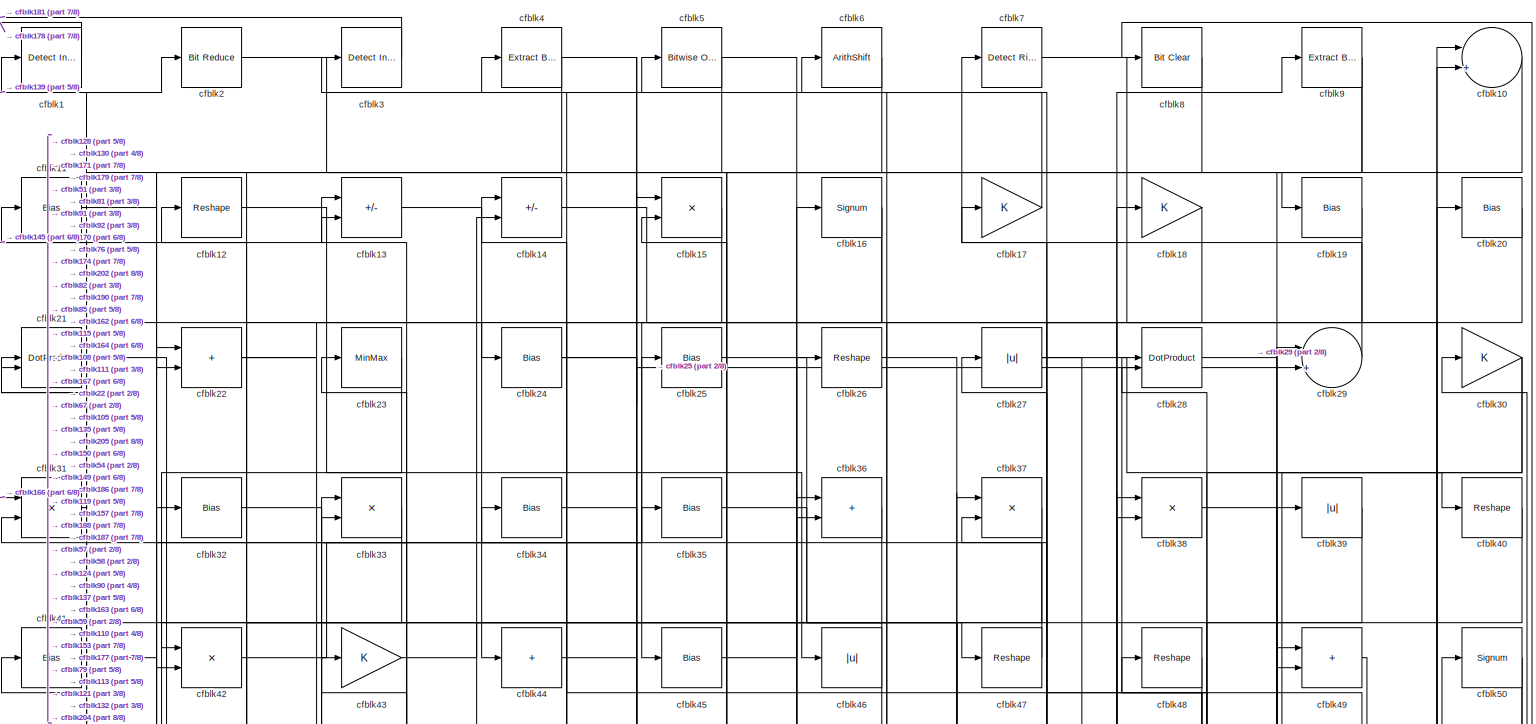
[diagram: root canvas - part 1/8, full width, top band]
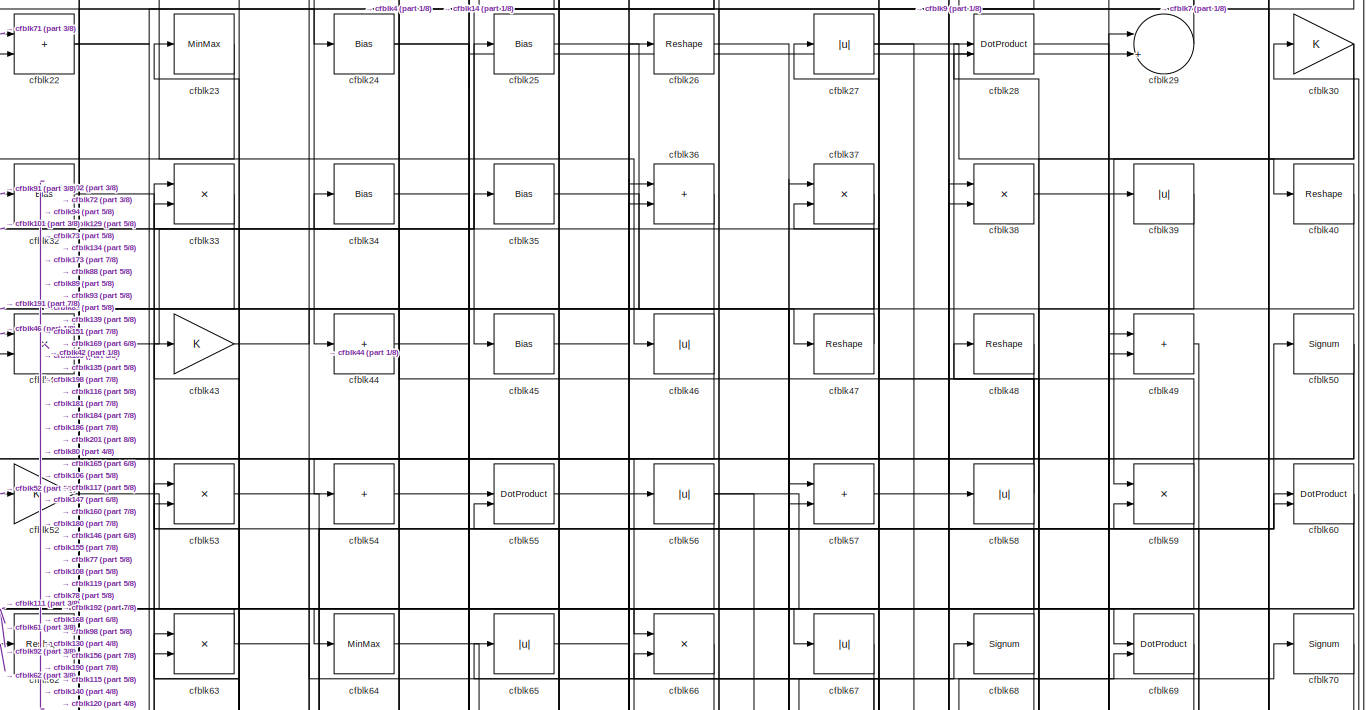
[diagram: root canvas - part 2/8, full width, top band]
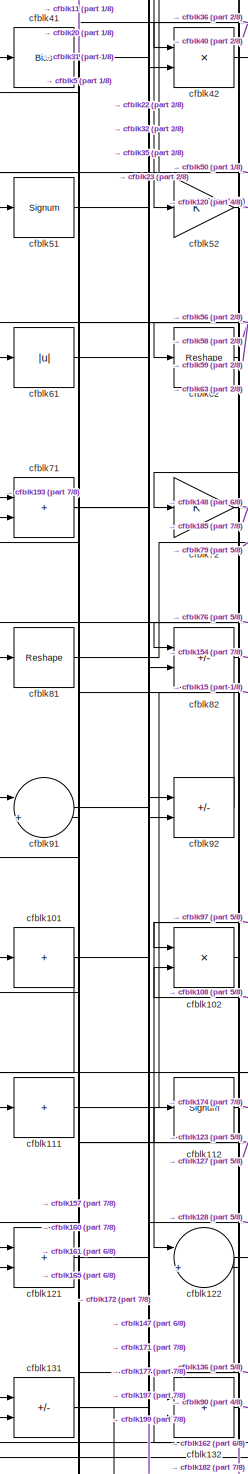
[diagram: root canvas - part 3/8, middle left region]
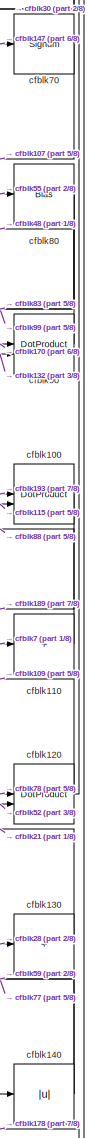
[diagram: root canvas - part 4/8, middle right region]
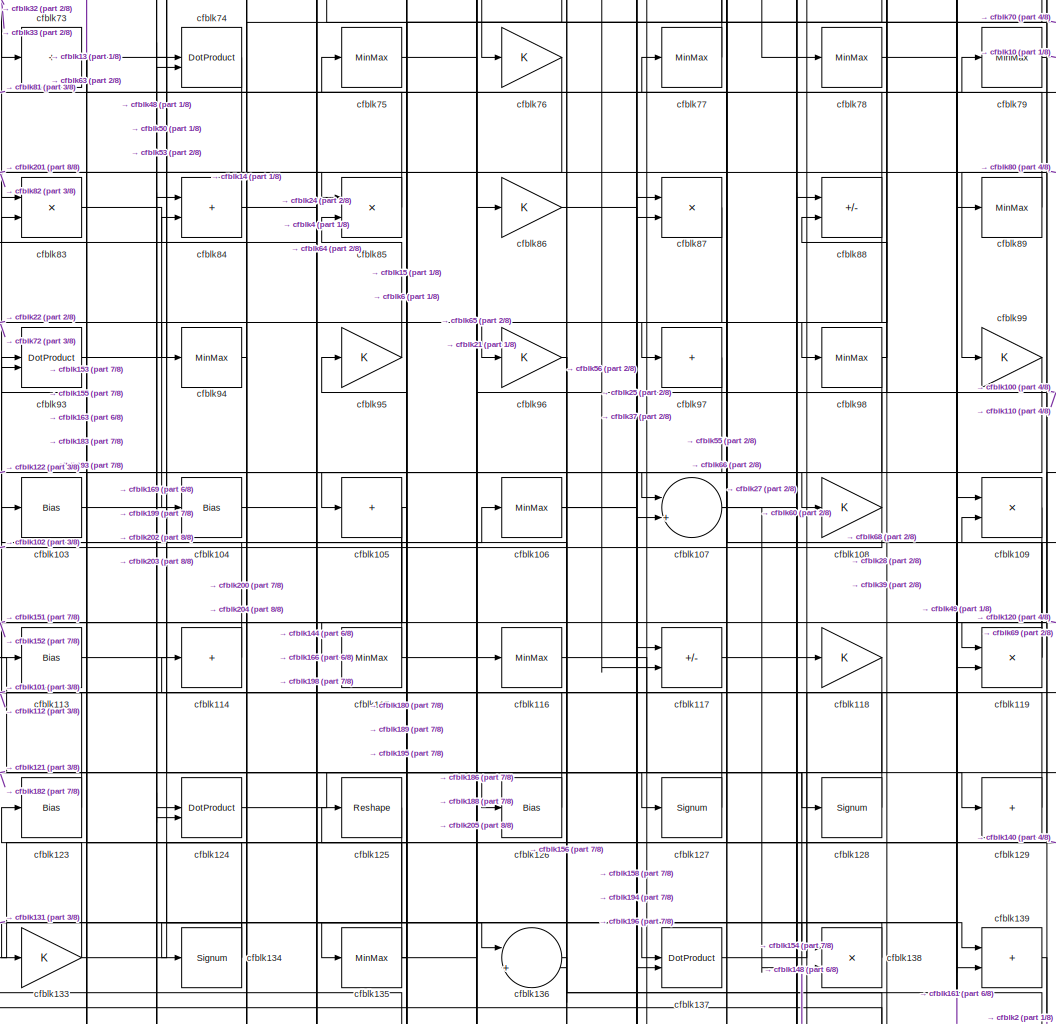
[diagram: root canvas - part 5/8, central region]
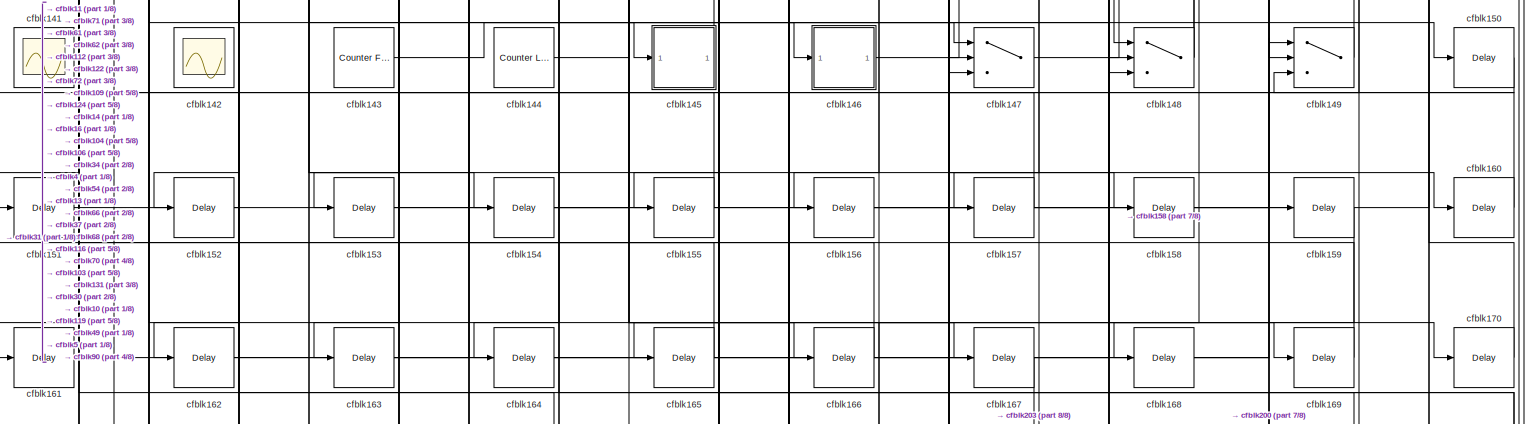
[diagram: root canvas - part 6/8, full width, bottom band]
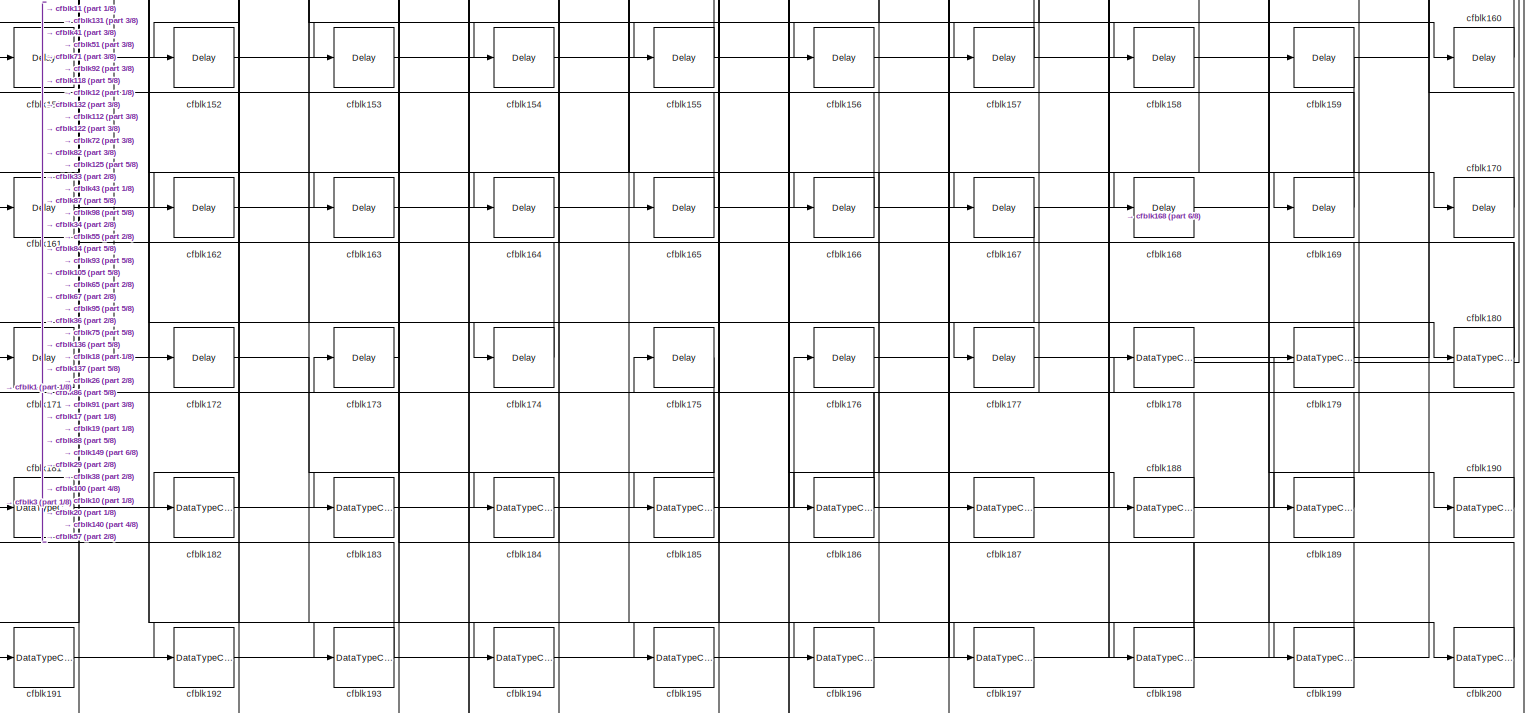
[diagram: root canvas - part 7/8, full width, bottom band]
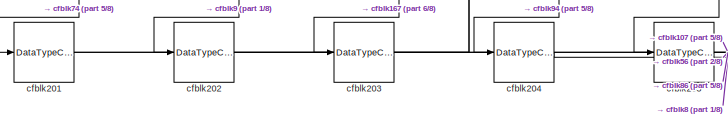
[diagram: root canvas - part 8/8, bottom left region]
MODEL slx_8ade005ada23
KIND model
CONFIG AbsTol = auto
CONFIG EnableMultiTasking = off
CONFIG FixedStep = auto
CONFIG MaxStep = auto
CONFIG MinStep = auto
CONFIG RelTol = 1e-3
CONFIG SampleTimeConstraint = Unconstrained
CONFIG SolverName = VariableStepAuto
CONFIG StartTime = 0.0
CONFIG StopTime = 10.0
BLOCK [Reference] cfblk1  REF=simulink/Logic and Bit
Operations/Detect
Increase
  LibrarySourceBlock = hdlsllib/Logic and Bit\nOperations/Detect\nIncrease
  SourceBlock = simulink/Logic and Bit\nOperations/Detect\nIncrease
  SourceType = Detect Increase
BLOCK [Sum] cfblk10
  Inputs = |++
BLOCK [DotProduct] cfblk100
  OutDataTypeStr = Inherit: Inherit via internal rule
BLOCK [Sum] cfblk101
  IconShape = rectangular
  Inputs = +
BLOCK [Product] cfblk102
  Inputs = */
  RndMeth = Zero
  SaturateOnIntegerOverflow = on
BLOCK [Bias] cfblk103
  Bias = 0.0
  SaturateOnIntegerOverflow = off
BLOCK [Bias] cfblk104
  Bias = 0.0
  SaturateOnIntegerOverflow = off
BLOCK [Sum] cfblk105
  IconShape = rectangular
  Inputs = +
BLOCK [MinMax] cfblk106
BLOCK [Sum] cfblk107
  Inputs = |++
BLOCK [Gain] cfblk108
BLOCK [Product] cfblk109
  Inputs = */
  RndMeth = Zero
  SaturateOnIntegerOverflow = on
BLOCK [Bias] cfblk11
  Bias = 0.0
  SaturateOnIntegerOverflow = off
BLOCK [Sum] cfblk110
  IconShape = rectangular
  Inputs = +
BLOCK [Sum] cfblk111
  IconShape = rectangular
  Inputs = +
BLOCK [Signum] cfblk112
BLOCK [Bias] cfblk113
  Bias = 0.0
  SaturateOnIntegerOverflow = off
BLOCK [Sum] cfblk114
  IconShape = rectangular
  Inputs = +
BLOCK [MinMax] cfblk115
BLOCK [MinMax] cfblk116
BLOCK [Sum] cfblk117
  IconShape = rectangular
  Inputs = +-
BLOCK [Gain] cfblk118
BLOCK [Product] cfblk119
  Inputs = */
  RndMeth = Zero
  SaturateOnIntegerOverflow = on
BLOCK [Reshape] cfblk12
BLOCK [DotProduct] cfblk120
  OutDataTypeStr = Inherit: Inherit via internal rule
BLOCK [Sum] cfblk121
  IconShape = rectangular
BLOCK [Sum] cfblk122
  Inputs = |++
BLOCK [Bias] cfblk123
  Bias = 0.0
  SaturateOnIntegerOverflow = off
BLOCK [DotProduct] cfblk124
  OutDataTypeStr = Inherit: Inherit via internal rule
BLOCK [Reshape] cfblk125
BLOCK [Bias] cfblk126
  Bias = 0.0
  SaturateOnIntegerOverflow = off
BLOCK [Signum] cfblk127
BLOCK [Signum] cfblk128
BLOCK [Sum] cfblk129
  IconShape = rectangular
  Inputs = +
BLOCK [Sum] cfblk13
  IconShape = rectangular
  Inputs = +-
BLOCK [Sum] cfblk130
  IconShape = rectangular
  Inputs = +
BLOCK [Sum] cfblk131
  IconShape = rectangular
  Inputs = +-
BLOCK [Sum] cfblk132
  IconShape = rectangular
BLOCK [Gain] cfblk133
BLOCK [Signum] cfblk134
BLOCK [MinMax] cfblk135
BLOCK [Sum] cfblk136
  Inputs = |++
BLOCK [DotProduct] cfblk137
  OutDataTypeStr = Inherit: Inherit via internal rule
BLOCK [Product] cfblk138
  Inputs = */
  RndMeth = Zero
  SaturateOnIntegerOverflow = on
BLOCK [Sum] cfblk139
  IconShape = rectangular
BLOCK [Sum] cfblk14
  IconShape = rectangular
  Inputs = +-
BLOCK [Abs] cfblk140
  SaturateOnIntegerOverflow = off
BLOCK [Scope] cfblk141
  Floating = on
  NumInputPorts = 1
  ScopeSpecificationString = Simulink.scopes.TimeScopeBlockCfg('CurrentConfiguration', extmgr.ConfigurationSet(extmgr.Configuration('Core','General UI',true,'FigureColor',[0.156862745098039 0.156862745098039 0.156862745098039]),extmgr.Configuration('Core','Source UI',true),extmgr.Configuration('Sources','WiredSimulink',true,'DataLoggingVariableName','ScopeData1','DataLoggingSaveFormat','StructureWithTime','DataLoggingLimitDat...<+2713ch>
BLOCK [Scope] cfblk142
  Floating = on
  NumInputPorts = 1
  ScopeSpecificationString = Simulink.scopes.TimeScopeBlockCfg('CurrentConfiguration', extmgr.ConfigurationSet(extmgr.Configuration('Core','General UI',true,'FigureColor',[0.156862745098039 0.156862745098039 0.156862745098039]),extmgr.Configuration('Core','Source UI',true),extmgr.Configuration('Sources','WiredSimulink',true,'DataLoggingVariableName','ScopeData1','DataLoggingSaveFormat','StructureWithTime','DataLoggingLimitDat...<+2713ch>
BLOCK [Reference] cfblk143  REF=hdlsllib/Sources/Counter
Free-Running
  SourceBlock = hdlsllib/Sources/Counter\nFree-Running
  SourceType = Counter Free-Running
BLOCK [Reference] cfblk144  REF=hdlsllib/Sources/Counter
Limited
  SourceBlock = hdlsllib/Sources/Counter\nLimited
  SourceType = Counter Limited
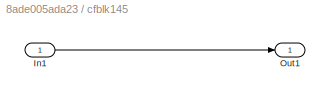
BLOCK [SubSystem] cfblk145
  LibrarySourceBlock = hdlsllib/Ports &\nSubsystems/Subsystem
BLOCK [Inport] cfblk145/In1
BLOCK [Outport] cfblk145/Out1
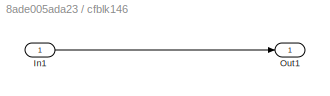
BLOCK [SubSystem] cfblk146
  LibrarySourceBlock = hdlsllib/Ports &\nSubsystems/Subsystem
BLOCK [Inport] cfblk146/In1
BLOCK [Outport] cfblk146/Out1
BLOCK [Switch] cfblk147
  InputSameDT = off
  SaturateOnIntegerOverflow = off
BLOCK [Switch] cfblk148
  InputSameDT = off
  SaturateOnIntegerOverflow = off
BLOCK [Switch] cfblk149
  InputSameDT = off
  SaturateOnIntegerOverflow = off
BLOCK [Product] cfblk15
  Inputs = */
  RndMeth = Zero
  SaturateOnIntegerOverflow = on
BLOCK [Delay] cfblk150
  InputPortMap = u0
  SampleTime = 1
BLOCK [Delay] cfblk151
  InputPortMap = u0
  SampleTime = 1
BLOCK [Delay] cfblk152
  InputPortMap = u0
  SampleTime = 1
BLOCK [Delay] cfblk153
  InputPortMap = u0
  SampleTime = 1
BLOCK [Delay] cfblk154
  InputPortMap = u0
  SampleTime = 1
BLOCK [Delay] cfblk155
  InputPortMap = u0
  SampleTime = 1
BLOCK [Delay] cfblk156
  InputPortMap = u0
  SampleTime = 1
BLOCK [Delay] cfblk157
  InputPortMap = u0
  SampleTime = 1
BLOCK [Delay] cfblk158
  InputPortMap = u0
  SampleTime = 1
BLOCK [Delay] cfblk159
  InputPortMap = u0
  SampleTime = 1
BLOCK [Signum] cfblk16
BLOCK [Delay] cfblk160
  InputPortMap = u0
  SampleTime = 1
BLOCK [Delay] cfblk161
  InputPortMap = u0
  SampleTime = 1
BLOCK [Delay] cfblk162
  InputPortMap = u0
  SampleTime = 1
BLOCK [Delay] cfblk163
  InputPortMap = u0
  SampleTime = 1
BLOCK [Delay] cfblk164
  InputPortMap = u0
  SampleTime = 1
BLOCK [Delay] cfblk165
  InputPortMap = u0
  SampleTime = 1
BLOCK [Delay] cfblk166
  InputPortMap = u0
  SampleTime = 1
BLOCK [Delay] cfblk167
  InputPortMap = u0
  SampleTime = 1
BLOCK [Delay] cfblk168
  InputPortMap = u0
  SampleTime = 1
BLOCK [Delay] cfblk169
  InputPortMap = u0
  SampleTime = 1
BLOCK [Gain] cfblk17
BLOCK [Delay] cfblk170
  InputPortMap = u0
  SampleTime = 1
BLOCK [Delay] cfblk171
  InputPortMap = u0
  SampleTime = 1
BLOCK [Delay] cfblk172
  InputPortMap = u0
  SampleTime = 1
BLOCK [Delay] cfblk173
  InputPortMap = u0
  SampleTime = 1
BLOCK [Delay] cfblk174
  InputPortMap = u0
  SampleTime = 1
BLOCK [Delay] cfblk175
  InputPortMap = u0
  SampleTime = 1
BLOCK [Delay] cfblk176
  InputPortMap = u0
  SampleTime = 1
BLOCK [Delay] cfblk177
  InputPortMap = u0
  SampleTime = 1
BLOCK [DataTypeConversion] cfblk178
  OutDataTypeStr = uint8
  RndMeth = Floor
  SaturateOnIntegerOverflow = off
BLOCK [DataTypeConversion] cfblk179
  OutDataTypeStr = uint8
  RndMeth = Floor
  SaturateOnIntegerOverflow = off
BLOCK [Gain] cfblk18
BLOCK [DataTypeConversion] cfblk180
  RndMeth = Floor
  SaturateOnIntegerOverflow = off
BLOCK [DataTypeConversion] cfblk181
  OutDataTypeStr = uint8
  RndMeth = Floor
  SaturateOnIntegerOverflow = off
BLOCK [DataTypeConversion] cfblk182
  RndMeth = Floor
  SaturateOnIntegerOverflow = off
BLOCK [DataTypeConversion] cfblk183
  OutDataTypeStr = uint8
  RndMeth = Floor
  SaturateOnIntegerOverflow = off
BLOCK [DataTypeConversion] cfblk184
  OutDataTypeStr = uint8
  RndMeth = Floor
  SaturateOnIntegerOverflow = off
BLOCK [DataTypeConversion] cfblk185
  OutDataTypeStr = uint8
  RndMeth = Floor
  SaturateOnIntegerOverflow = off
BLOCK [DataTypeConversion] cfblk186
  RndMeth = Floor
  SaturateOnIntegerOverflow = off
BLOCK [DataTypeConversion] cfblk187
  OutDataTypeStr = uint8
  RndMeth = Floor
  SaturateOnIntegerOverflow = off
BLOCK [DataTypeConversion] cfblk188
  OutDataTypeStr = uint8
  RndMeth = Floor
  SaturateOnIntegerOverflow = off
BLOCK [DataTypeConversion] cfblk189
  OutDataTypeStr = uint8
  RndMeth = Floor
  SaturateOnIntegerOverflow = off
BLOCK [Bias] cfblk19
  Bias = 0.0
  SaturateOnIntegerOverflow = off
BLOCK [DataTypeConversion] cfblk190
  OutDataTypeStr = uint8
  RndMeth = Floor
  SaturateOnIntegerOverflow = off
BLOCK [DataTypeConversion] cfblk191
  OutDataTypeStr = uint8
  RndMeth = Floor
  SaturateOnIntegerOverflow = off
BLOCK [DataTypeConversion] cfblk192
  OutDataTypeStr = uint8
  RndMeth = Floor
  SaturateOnIntegerOverflow = off
BLOCK [DataTypeConversion] cfblk193
  RndMeth = Floor
  SaturateOnIntegerOverflow = off
BLOCK [DataTypeConversion] cfblk194
  OutDataTypeStr = uint8
  RndMeth = Floor
  SaturateOnIntegerOverflow = off
BLOCK [DataTypeConversion] cfblk195
  OutDataTypeStr = uint8
  RndMeth = Floor
  SaturateOnIntegerOverflow = off
BLOCK [DataTypeConversion] cfblk196
  OutDataTypeStr = uint8
  RndMeth = Floor
  SaturateOnIntegerOverflow = off
BLOCK [DataTypeConversion] cfblk197
  OutDataTypeStr = uint8
  RndMeth = Floor
  SaturateOnIntegerOverflow = off
BLOCK [DataTypeConversion] cfblk198
  RndMeth = Floor
  SaturateOnIntegerOverflow = off
BLOCK [DataTypeConversion] cfblk199
  OutDataTypeStr = uint8
  RndMeth = Floor
  SaturateOnIntegerOverflow = off
BLOCK [Reference] cfblk2  REF=hdlsllib/Logic and Bit
Operations/Bit Reduce
  SourceBlock = hdlsllib/Logic and Bit\nOperations/Bit Reduce
  SourceType = Bit Reduce
BLOCK [Bias] cfblk20
  Bias = 0.0
  SaturateOnIntegerOverflow = off
BLOCK [DataTypeConversion] cfblk200
  OutDataTypeStr = uint8
  RndMeth = Floor
  SaturateOnIntegerOverflow = off
BLOCK [DataTypeConversion] cfblk201
  RndMeth = Floor
  SaturateOnIntegerOverflow = off
BLOCK [DataTypeConversion] cfblk202
  OutDataTypeStr = uint8
  RndMeth = Floor
  SaturateOnIntegerOverflow = off
BLOCK [DataTypeConversion] cfblk203
  OutDataTypeStr = uint8
  RndMeth = Floor
  SaturateOnIntegerOverflow = off
BLOCK [DataTypeConversion] cfblk204
  OutDataTypeStr = boolean
  RndMeth = Floor
  SaturateOnIntegerOverflow = off
BLOCK [DataTypeConversion] cfblk205
  OutDataTypeStr = uint8
  RndMeth = Floor
  SaturateOnIntegerOverflow = off
BLOCK [DotProduct] cfblk21
  OutDataTypeStr = Inherit: Inherit via internal rule
BLOCK [Sum] cfblk22
  IconShape = rectangular
BLOCK [MinMax] cfblk23
BLOCK [Bias] cfblk24
  Bias = 0.0
  SaturateOnIntegerOverflow = off
BLOCK [Bias] cfblk25
  Bias = 0.0
  SaturateOnIntegerOverflow = off
BLOCK [Reshape] cfblk26
BLOCK [Abs] cfblk27
  SaturateOnIntegerOverflow = off
BLOCK [DotProduct] cfblk28
  OutDataTypeStr = Inherit: Inherit via internal rule
BLOCK [Sum] cfblk29
  Inputs = |++
BLOCK [Reference] cfblk3  REF=simulink/Logic and Bit
Operations/Detect
Increase
  LibrarySourceBlock = hdlsllib/Logic and Bit\nOperations/Detect\nIncrease
  SourceBlock = simulink/Logic and Bit\nOperations/Detect\nIncrease
  SourceType = Detect Increase
BLOCK [Gain] cfblk30
BLOCK [Product] cfblk31
  Inputs = */
  RndMeth = Zero
  SaturateOnIntegerOverflow = on
BLOCK [Bias] cfblk32
  Bias = 0.0
  SaturateOnIntegerOverflow = off
BLOCK [Product] cfblk33
  Inputs = */
  RndMeth = Zero
  SaturateOnIntegerOverflow = on
BLOCK [Bias] cfblk34
  Bias = 0.0
  SaturateOnIntegerOverflow = off
BLOCK [Bias] cfblk35
  Bias = 0.0
  SaturateOnIntegerOverflow = off
BLOCK [Sum] cfblk36
  IconShape = rectangular
BLOCK [Product] cfblk37
  Inputs = */
  RndMeth = Zero
  SaturateOnIntegerOverflow = on
BLOCK [Product] cfblk38
  Inputs = */
  RndMeth = Zero
  SaturateOnIntegerOverflow = on
BLOCK [Abs] cfblk39
  SaturateOnIntegerOverflow = off
BLOCK [Reference] cfblk4  REF=simulink/Logic and Bit
Operations/Extract Bits
  LibrarySourceBlock = hdlsllib/Logic and Bit\nOperations/Extract Bits
  SourceBlock = simulink/Logic and Bit\nOperations/Extract Bits
  SourceType = Extract Bits
BLOCK [Reshape] cfblk40
BLOCK [Bias] cfblk41
  Bias = 0.0
  SaturateOnIntegerOverflow = off
BLOCK [Product] cfblk42
  Inputs = */
  RndMeth = Zero
  SaturateOnIntegerOverflow = on
BLOCK [Gain] cfblk43
BLOCK [Sum] cfblk44
  IconShape = rectangular
  Inputs = +
BLOCK [Bias] cfblk45
  Bias = 0.0
  SaturateOnIntegerOverflow = off
BLOCK [Abs] cfblk46
  SaturateOnIntegerOverflow = off
BLOCK [Reshape] cfblk47
BLOCK [Reshape] cfblk48
BLOCK [Sum] cfblk49
  IconShape = rectangular
BLOCK [Reference] cfblk5  REF=simulink/Logic and Bit
Operations/Bitwise
Operator
  LibrarySourceBlock = hdlsllib/Logic and Bit\nOperations/Bitwise\nOperator
  SourceBlock = simulink/Logic and Bit\nOperations/Bitwise\nOperator
  SourceType = Bitwise Operator
BLOCK [Signum] cfblk50
BLOCK [Signum] cfblk51
BLOCK [Gain] cfblk52
BLOCK [Product] cfblk53
  Inputs = */
  RndMeth = Zero
  SaturateOnIntegerOverflow = on
BLOCK [Sum] cfblk54
  IconShape = rectangular
  Inputs = +
BLOCK [DotProduct] cfblk55
  OutDataTypeStr = Inherit: Inherit via internal rule
BLOCK [Abs] cfblk56
  SaturateOnIntegerOverflow = off
BLOCK [Sum] cfblk57
  IconShape = rectangular
BLOCK [Abs] cfblk58
  SaturateOnIntegerOverflow = off
BLOCK [Product] cfblk59
  Inputs = */
  RndMeth = Zero
  SaturateOnIntegerOverflow = on
BLOCK [ArithShift] cfblk6
  BitShiftNumber = 8
  InputPortMap = u0
BLOCK [DotProduct] cfblk60
  OutDataTypeStr = Inherit: Inherit via internal rule
BLOCK [Abs] cfblk61
  SaturateOnIntegerOverflow = off
BLOCK [Reshape] cfblk62
BLOCK [Product] cfblk63
  Inputs = */
  RndMeth = Zero
  SaturateOnIntegerOverflow = on
BLOCK [MinMax] cfblk64
BLOCK [Abs] cfblk65
  SaturateOnIntegerOverflow = off
BLOCK [Product] cfblk66
  Inputs = */
  RndMeth = Zero
  SaturateOnIntegerOverflow = on
BLOCK [Abs] cfblk67
  SaturateOnIntegerOverflow = off
BLOCK [Signum] cfblk68
BLOCK [DotProduct] cfblk69
  OutDataTypeStr = Inherit: Inherit via internal rule
BLOCK [Reference] cfblk7  REF=hdlsllib/Logic and Bit
Operations/Detect Rise
Positive
  SourceBlock = hdlsllib/Logic and Bit\nOperations/Detect Rise\nPositive
  SourceType = Detect Rise Positive
BLOCK [Signum] cfblk70
BLOCK [Sum] cfblk71
  IconShape = rectangular
BLOCK [Gain] cfblk72
BLOCK [Sum] cfblk73
  IconShape = rectangular
  Inputs = +
BLOCK [DotProduct] cfblk74
  OutDataTypeStr = Inherit: Inherit via internal rule
BLOCK [MinMax] cfblk75
BLOCK [Gain] cfblk76
BLOCK [MinMax] cfblk77
BLOCK [MinMax] cfblk78
BLOCK [MinMax] cfblk79
BLOCK [Reference] cfblk8  REF=simulink/Logic and Bit
Operations/Bit Clear
  LibrarySourceBlock = hdlsllib/Logic and Bit\nOperations/Bit Clear
  SourceBlock = simulink/Logic and Bit\nOperations/Bit Clear
  SourceType = Bit Clear
BLOCK [Bias] cfblk80
  Bias = 0.0
  SaturateOnIntegerOverflow = off
BLOCK [Reshape] cfblk81
BLOCK [Sum] cfblk82
  IconShape = rectangular
  Inputs = +-
BLOCK [Product] cfblk83
  Inputs = */
  RndMeth = Zero
  SaturateOnIntegerOverflow = on
BLOCK [Sum] cfblk84
  IconShape = rectangular
BLOCK [Product] cfblk85
  Inputs = */
  RndMeth = Zero
  SaturateOnIntegerOverflow = on
BLOCK [Gain] cfblk86
BLOCK [Product] cfblk87
  Inputs = */
  RndMeth = Zero
  SaturateOnIntegerOverflow = on
BLOCK [Sum] cfblk88
  IconShape = rectangular
  Inputs = +-
BLOCK [MinMax] cfblk89
BLOCK [Reference] cfblk9  REF=simulink/Logic and Bit
Operations/Extract Bits
  LibrarySourceBlock = hdlsllib/Logic and Bit\nOperations/Extract Bits
  SourceBlock = simulink/Logic and Bit\nOperations/Extract Bits
  SourceType = Extract Bits
BLOCK [DotProduct] cfblk90
  OutDataTypeStr = Inherit: Inherit via internal rule
BLOCK [Sum] cfblk91
  Inputs = |++
BLOCK [Sum] cfblk92
  IconShape = rectangular
  Inputs = +-
BLOCK [DotProduct] cfblk93
  OutDataTypeStr = Inherit: Inherit via internal rule
BLOCK [MinMax] cfblk94
BLOCK [Gain] cfblk95
BLOCK [Gain] cfblk96
BLOCK [Sum] cfblk97
  IconShape = rectangular
  Inputs = +
BLOCK [MinMax] cfblk98
BLOCK [Gain] cfblk99
LINE cfblk100:1 -> cfblk189:1
NET cfblk101:1 -> cfblk131:2, cfblk35:1, cfblk41:1
LINE cfblk102:1 -> cfblk122:2
LINE cfblk103:1 -> cfblk127:1
LINE cfblk104:1 -> cfblk166:1
NET cfblk105:1 -> cfblk151:1, cfblk152:1, cfblk195:1
NET cfblk106:1 -> cfblk138:1, cfblk37:1
NET cfblk107:1 -> cfblk138:2, cfblk139:1
NET cfblk108:1 -> cfblk102:2, cfblk37:2
LINE cfblk109:1 -> cfblk163:1
LINE cfblk10:1 -> cfblk149:2
LINE cfblk110:1 -> cfblk88:2
LINE cfblk111:1 -> cfblk15:1
NET cfblk112:1 -> cfblk147:2, cfblk174:1
LINE cfblk113:1 -> cfblk50:1
LINE cfblk114:1 -> cfblk93:1
NET cfblk115:1 -> cfblk100:2, cfblk14:1
LINE cfblk116:1 -> cfblk148:1
LINE cfblk117:1 -> cfblk60:1
LINE cfblk118:1 -> cfblk182:1
NET cfblk119:1 -> cfblk66:2, cfblk6:1
NET cfblk11:1 -> cfblk170:1, cfblk171:1
NET cfblk120:1 -> cfblk109:2, cfblk30:1
LINE cfblk121:1 -> cfblk128:1
NET cfblk122:1 -> cfblk160:1, cfblk161:1
LINE cfblk123:1 -> cfblk112:1
LINE cfblk124:1 -> cfblk129:1
LINE cfblk125:1 -> cfblk183:1
LINE cfblk126:1 -> cfblk114:1
LINE cfblk127:1 -> cfblk101:1
LINE cfblk128:1 -> cfblk21:2
LINE cfblk129:1 -> cfblk33:1
LINE cfblk12:1 -> cfblk46:1
LINE cfblk130:1 -> cfblk21:1
NET cfblk131:1 -> cfblk136:1, cfblk172:1
LINE cfblk132:1 -> cfblk90:2
NET cfblk133:1 -> cfblk123:1, cfblk89:1
NET cfblk134:1 -> cfblk133:1, cfblk63:2
NET cfblk135:1 -> cfblk15:2, cfblk60:2, cfblk83:2
LINE cfblk136:1 -> cfblk156:1
LINE cfblk137:1 -> cfblk49:2
LINE cfblk138:1 -> cfblk135:1
LINE cfblk139:1 -> cfblk2:1
LINE cfblk13:1 -> cfblk44:1
NET cfblk140:1 -> cfblk59:2, cfblk77:1
LINE cfblk143:1 -> cfblk145:1
LINE cfblk144:1 -> cfblk106:1
LINE cfblk145/In1:1 -> cfblk145/Out1:1
LINE cfblk145:1 -> cfblk13:1
LINE cfblk146/In1:1 -> cfblk146/Out1:1
LINE cfblk146:1 -> cfblk68:1
LINE cfblk147:1 -> cfblk70:1
NET cfblk148:1 -> cfblk103:1, cfblk131:1
LINE cfblk149:1 -> cfblk5:1
LINE cfblk14:1 -> cfblk58:1
LINE cfblk150:1 -> cfblk149:3
LINE cfblk151:1 -> cfblk55:1
LINE cfblk152:1 -> cfblk192:1
LINE cfblk153:1 -> cfblk10:1
LINE cfblk154:1 -> cfblk88:1
LINE cfblk155:1 -> cfblk93:2
LINE cfblk156:1 -> cfblk29:1
LINE cfblk157:1 -> cfblk91:1
LINE cfblk158:1 -> cfblk149:1
LINE cfblk159:1 -> cfblk196:1
LINE cfblk15:1 -> cfblk45:1
LINE cfblk160:1 -> cfblk57:1
LINE cfblk161:1 -> cfblk119:2
LINE cfblk162:1 -> cfblk14:2
LINE cfblk163:1 -> cfblk49:1
LINE cfblk164:1 -> cfblk148:2
LINE cfblk165:1 -> cfblk71:2
LINE cfblk166:1 -> cfblk31:1
LINE cfblk167:1 -> cfblk203:1
LINE cfblk168:1 -> cfblk200:1
LINE cfblk169:1 -> cfblk124:1
NET cfblk16:1 -> cfblk164:1, cfblk82:1
LINE cfblk170:1 -> cfblk90:1
LINE cfblk171:1 -> cfblk92:1
LINE cfblk172:1 -> cfblk194:1
LINE cfblk173:1 -> cfblk33:2
LINE cfblk174:1 -> cfblk12:1
LINE cfblk175:1 -> cfblk184:1
LINE cfblk176:1 -> cfblk187:1
LINE cfblk177:1 -> cfblk20:1
LINE cfblk178:1 -> cfblk140:1
LINE cfblk179:1 -> cfblk1:1
LINE cfblk17:1 -> cfblk3:1
NET cfblk180:1 -> cfblk34:1, cfblk95:1
LINE cfblk181:1 -> cfblk26:1
NET cfblk182:1 -> cfblk132:2, cfblk176:1
LINE cfblk183:1 -> cfblk118:1
LINE cfblk184:1 -> cfblk36:2
LINE cfblk185:1 -> cfblk175:1
NET cfblk186:1 -> cfblk125:1, cfblk179:1, cfblk36:1
LINE cfblk187:1 -> cfblk18:1
LINE cfblk188:1 -> cfblk17:1
LINE cfblk189:1 -> cfblk75:1
LINE cfblk18:1 -> cfblk186:1
LINE cfblk190:1 -> cfblk43:1
LINE cfblk191:1 -> cfblk38:1
LINE cfblk192:1 -> cfblk38:2
NET cfblk193:1 -> cfblk100:1, cfblk71:1
LINE cfblk194:1 -> cfblk87:1
LINE cfblk195:1 -> cfblk87:2
LINE cfblk196:1 -> cfblk137:2
LINE cfblk197:1 -> cfblk159:1
NET cfblk198:1 -> cfblk173:1, cfblk65:1
LINE cfblk199:1 -> cfblk84:1
LINE cfblk19:1 -> cfblk157:1
LINE cfblk1:1 -> cfblk178:1
LINE cfblk200:1 -> cfblk84:2
NET cfblk201:1 -> cfblk107:2, cfblk56:1
LINE cfblk202:1 -> cfblk74:1
LINE cfblk203:1 -> cfblk74:2
LINE cfblk204:1 -> cfblk8:1
LINE cfblk205:1 -> cfblk86:1
LINE cfblk20:1 -> cfblk51:1
LINE cfblk21:1 -> cfblk76:1
NET cfblk22:1 -> cfblk24:1, cfblk94:1
LINE cfblk23:1 -> cfblk52:1
NET cfblk24:1 -> cfblk139:2, cfblk29:2
LINE cfblk25:1 -> cfblk117:1
LINE cfblk26:1 -> cfblk180:1
NET cfblk27:1 -> cfblk40:1, cfblk78:1
LINE cfblk28:1 -> cfblk130:1
LINE cfblk29:1 -> cfblk7:1
LINE cfblk2:1 -> cfblk19:1
NET cfblk30:1 -> cfblk168:1, cfblk59:1
LINE cfblk31:1 -> cfblk81:1
LINE cfblk32:1 -> cfblk73:1
LINE cfblk33:1 -> cfblk191:1
LINE cfblk34:1 -> cfblk169:1
LINE cfblk35:1 -> cfblk57:2
LINE cfblk36:1 -> cfblk72:1
LINE cfblk37:1 -> cfblk147:3
LINE cfblk38:1 -> cfblk190:1
LINE cfblk39:1 -> cfblk98:1
LINE cfblk3:1 -> cfblk181:1
LINE cfblk40:1 -> cfblk62:1
LINE cfblk41:1 -> cfblk197:1
LINE cfblk42:1 -> cfblk25:1
LINE cfblk43:1 -> cfblk47:1
LINE cfblk44:1 -> cfblk67:1
LINE cfblk45:1 -> cfblk16:1
NET cfblk46:1 -> cfblk42:1, cfblk54:1
LINE cfblk47:1 -> cfblk31:2
LINE cfblk48:1 -> cfblk124:2
LINE cfblk49:1 -> cfblk119:1
NET cfblk4:1 -> cfblk108:1, cfblk167:1, cfblk22:2
NET cfblk50:1 -> cfblk121:2, cfblk132:1
LINE cfblk51:1 -> cfblk177:1
LINE cfblk52:1 -> cfblk120:2
LINE cfblk53:1 -> cfblk85:1
LINE cfblk54:1 -> cfblk146:1
LINE cfblk55:1 -> cfblk80:1
NET cfblk56:1 -> cfblk117:2, cfblk69:1, cfblk92:2
LINE cfblk57:1 -> cfblk9:1
NET cfblk58:1 -> cfblk102:1, cfblk27:1, cfblk28:1
NET cfblk59:1 -> cfblk111:1, cfblk4:1
NET cfblk5:1 -> cfblk150:1, cfblk91:2
NET cfblk60:1 -> cfblk64:1, cfblk66:1
LINE cfblk61:1 -> cfblk147:1
LINE cfblk62:1 -> cfblk162:1
NET cfblk63:1 -> cfblk61:1, cfblk69:2
LINE cfblk64:1 -> cfblk109:1
LINE cfblk65:1 -> cfblk116:1
LINE cfblk66:1 -> cfblk165:1
LINE cfblk67:1 -> cfblk155:1
NET cfblk68:1 -> cfblk134:1, cfblk23:1
LINE cfblk69:1 -> cfblk115:1
LINE cfblk6:1 -> cfblk105:1
LINE cfblk70:1 -> cfblk107:1
NET cfblk71:1 -> cfblk121:1, cfblk199:1, cfblk22:1
NET cfblk72:1 -> cfblk148:3, cfblk185:1, cfblk97:1
LINE cfblk73:1 -> cfblk137:1
LINE cfblk74:1 -> cfblk201:1
LINE cfblk75:1 -> cfblk188:1
LINE cfblk76:1 -> cfblk82:2
LINE cfblk77:1 -> cfblk55:2
LINE cfblk78:1 -> cfblk120:1
LINE cfblk79:1 -> cfblk10:2
LINE cfblk7:1 -> cfblk110:1
NET cfblk80:1 -> cfblk83:1, cfblk99:1
LINE cfblk81:1 -> cfblk79:1
LINE cfblk82:1 -> cfblk154:1
LINE cfblk83:1 -> cfblk104:1
LINE cfblk84:1 -> cfblk198:1
LINE cfblk85:1 -> cfblk13:2
LINE cfblk86:1 -> cfblk158:1
LINE cfblk87:1 -> cfblk193:1
NET cfblk88:1 -> cfblk53:2, cfblk96:1
LINE cfblk89:1 -> cfblk63:1
LINE cfblk8:1 -> cfblk205:1
LINE cfblk90:1 -> cfblk48:1
LINE cfblk91:1 -> cfblk32:1
LINE cfblk92:1 -> cfblk11:1
NET cfblk93:1 -> cfblk39:1, cfblk53:1
LINE cfblk94:1 -> cfblk204:1
LINE cfblk95:1 -> cfblk85:2
NET cfblk96:1 -> cfblk126:1, cfblk136:2
LINE cfblk97:1 -> cfblk122:1
NET cfblk98:1 -> cfblk153:1, cfblk28:2
LINE cfblk99:1 -> cfblk113:1
NET cfblk9:1 -> cfblk202:1, cfblk42:2
note: NET lines group one-source signal fan-out (src -> all destinations, sorted); 1:1 wires keep LINE
